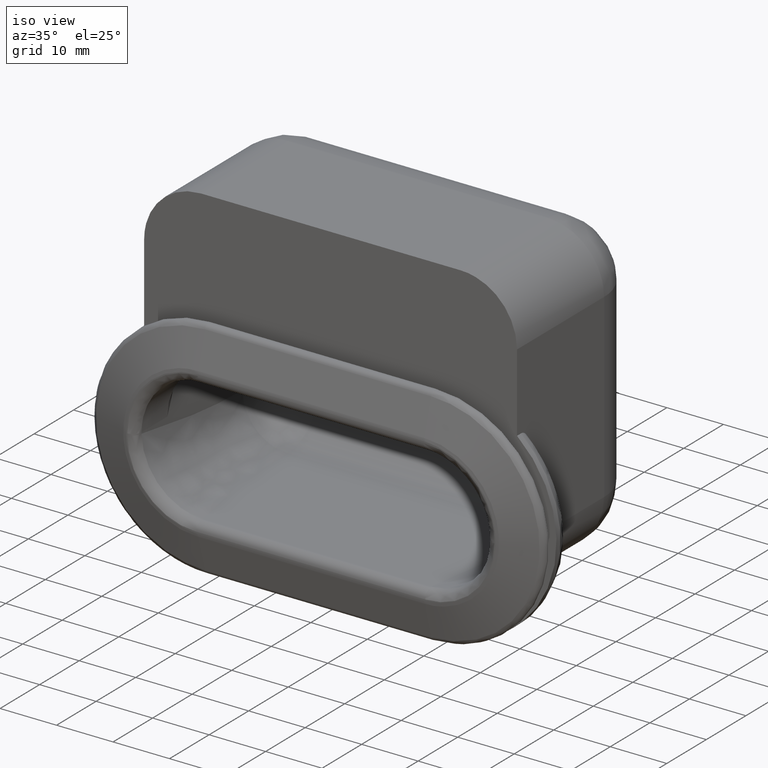
[diagram: clean part render]
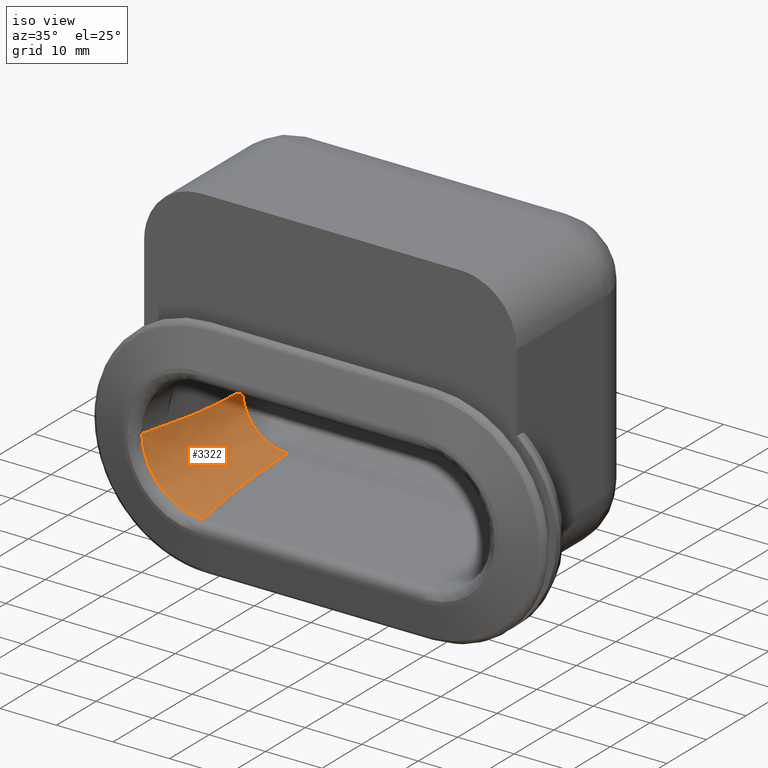
[diagram: same view with one face highlighted and labeled with its STEP entity id]
A machine part, iso view. The second image highlights one B-rep face of the part: STEP entity #3322.
In plain terms, the highlighted face is a freeform B-spline surface patch.
Its self-contained STEP definition (entity closure, byte-faithful):
#1757=CARTESIAN_POINT('',(-20.249742798353850,1.499999999999714,-11.0));
#1758=VERTEX_POINT('',#1757);
#1772=CARTESIAN_POINT('',(-31.0,1.499999999999946,-0.249742798353906));
#1773=VERTEX_POINT('',#1772);
#1774=CARTESIAN_POINT('',(-31.0,1.500000000000000,-0.249742798353914));
#1775=CARTESIAN_POINT('',(-30.999999969727771,1.500252549815685,-0.260678283964079));
#1776=CARTESIAN_POINT('',(-30.999982966152999,1.500511854793803,-0.271923207818009));
#1777=CARTESIAN_POINT('',(-30.999914875682691,1.501022357084521,-0.294095832073633));
#1778=CARTESIAN_POINT('',(-30.999761708183421,1.501786738729247,-0.327346128542702));
#1779=CARTESIAN_POINT('',(-30.999047610634769,1.503560704739157,-0.404869761618341));
#1780=CARTESIAN_POINT('',(-30.996196569838840,1.507070359810214,-0.559676134094665));
#1781=CARTESIAN_POINT('',(-30.984832784577161,1.513937213818059,-0.868330331959268));
#1782=CARTESIAN_POINT('',(-30.965480106046961,1.519563782671905,-1.131263686030261));
#1783=CARTESIAN_POINT('',(-30.914121269234968,1.530474634001934,-1.654988143755380));
#1784=CARTESIAN_POINT('',(-30.863040131099851,1.537292860613451,-2.001286426256269));
#1785=CARTESIAN_POINT('',(-30.727330874605752,1.550019076581776,-2.688203497313830));
#1786=CARTESIAN_POINT('',(-30.642704376874370,1.555927137404509,-3.028822559715315));
#1787=CARTESIAN_POINT('',(-30.515438347136101,1.562729326899967,-3.450959337482828));
#1788=CARTESIAN_POINT('',(-30.488908534491301,1.564060558884691,-3.535204423724529));
#1789=CARTESIAN_POINT('',(-30.433672574357011,1.566664002593560,-3.703326142766757));
#1790=CARTESIAN_POINT('',(-30.404929356673222,1.567937730322128,-3.787305598778076));
#1791=CARTESIAN_POINT('',(-30.315668787811699,1.571658021342872,-4.037920181667801));
#1792=CARTESIAN_POINT('',(-30.252274256269100,1.573998293096441,-4.202843580725103));
#1793=CARTESIAN_POINT('',(-30.050657477253541,1.580607973873049,-4.691281782404476));
#1794=CARTESIAN_POINT('',(-29.751400787633340,1.588326438126842,-5.325677400030978));
#1795=CARTESIAN_POINT('',(-29.392347790066850,1.593899657487367,-5.926956212383218));
#1796=CARTESIAN_POINT('',(-29.100393212354970,1.597268330194704,-6.365362909543805));
#1797=CARTESIAN_POINT('',(-28.999290929815860,1.598255774612405,-6.509402741164915));
#1798=CARTESIAN_POINT('',(-28.841868869957271,1.599530654360605,-6.722267655782300));
#1799=CARTESIAN_POINT('',(-28.788432961602311,1.599921216719429,-6.792689906487038));
#1800=CARTESIAN_POINT('',(-28.679616336645658,1.600632821243189,-6.932457318146385));
#1801=CARTESIAN_POINT('',(-28.624162111747900,1.600954171535396,-7.001889391042955));
#1802=CARTESIAN_POINT('',(-28.343386568833211,1.602378392426294,-7.344617237387416));
#1803=CARTESIAN_POINT('',(-28.106968106284508,1.602940876073137,-7.605510416955004));
#1804=CARTESIAN_POINT('',(-27.611283274364379,1.602949289250014,-8.101561285905730));
#1805=CARTESIAN_POINT('',(-27.352014939656659,1.602395120194672,-8.336716761560417));
#1806=CARTESIAN_POINT('',(-26.810703202545149,1.600173148359806,-8.781374265571824));
#1807=CARTESIAN_POINT('',(-26.528660996648959,1.598505399192582,-8.990877641640068));
#1808=CARTESIAN_POINT('',(-26.161510743074778,1.595705799039095,-9.236314487991463));
#1809=CARTESIAN_POINT('',(-26.087349131402210,1.595110048229710,-9.284577839319576));
#1810=CARTESIAN_POINT('',(-25.937546698580551,1.593846059966300,-9.379438385225800));
#1811=CARTESIAN_POINT('',(-25.861923303328780,1.593177861726546,-9.426019871952594));
#1812=CARTESIAN_POINT('',(-25.634109136732761,1.591075830877801,-9.562483692584458));
#1813=CARTESIAN_POINT('',(-25.480556374427511,1.589541186584991,-9.649356653936765));
#1814=CARTESIAN_POINT('',(-25.014965274155109,1.584544616997456,-9.897904475909265));
#1815=CARTESIAN_POINT('',(-24.381046264508448,1.576837341098695,-10.197169072965620));
#1816=CARTESIAN_POINT('',(-23.721311307264770,1.567070075492736,-10.433259427537481));
#1817=CARTESIAN_POINT('',(-23.216718845343930,1.558962032665884,-10.586366982975131));
#1818=CARTESIAN_POINT('',(-23.046886627025390,1.556128699918070,-10.633402475251550));
#1819=CARTESIAN_POINT('',(-22.703898412440878,1.550196321729555,-10.719339821660601));
#1820=CARTESIAN_POINT('',(-22.530416406083990,1.547090913286038,-10.758292216663390));
#1821=CARTESIAN_POINT('',(-22.009353922082109,1.537451652441176,-10.861848168795451));
#1822=CARTESIAN_POINT('',(-21.660071958501280,1.530578194912349,-10.913521109391930));
#1823=CARTESIAN_POINT('',(-21.133326290213930,1.519607913535420,-10.965327983016991));
#1824=CARTESIAN_POINT('',(-20.957273088455960,1.515840958675693,-10.978305371586270));
#1825=CARTESIAN_POINT('',(-20.692483369990310,1.510025025912975,-10.991307352715740));
#1826=CARTESIAN_POINT('',(-20.559910952298939,1.507075668458496,-10.996191594433990));
#1827=CARTESIAN_POINT('',(-20.404930907235130,1.503562101894457,-10.999046958920101));
#1828=CARTESIAN_POINT('',(-20.327362576468119,1.501787116551272,-10.999761619591171));
#1829=CARTESIAN_POINT('',(-20.294102197164790,1.501022503539905,-10.999914852025460));
#1830=CARTESIAN_POINT('',(-20.271924872273470,1.500511893210607,-10.999982965150620));
#1831=CARTESIAN_POINT('',(-20.260678283964062,1.500252549815685,-10.999999969726170));
#1832=CARTESIAN_POINT('',(-20.249742798353850,1.499999999999714,-11.0));
#1833=B_SPLINE_CURVE_WITH_KNOTS('',3,(#1774,#1775,#1776,#1777,#1778,#1779,#1780,#1781,#1782,#1783,#1784,#1785,#1786,#1787,#1788,#1789,#1790,#1791,#1792,#1793,#1794,#1795,#1796,#1797,#1798,#1799,#1800,#1801,#1802,#1803,#1804,#1805,#1806,#1807,#1808,#1809,#1810,#1811,#1812,#1813,#1814,#1815,#1816,#1817,#1818,#1819,#1820,#1821,#1822,#1823,#1824,#1825,#1826,#1827,#1828,#1829,#1830,#1831,#1832),.UNSPECIFIED.,.F.,.U.,(4,2,1,1,1,1,2,2,2,2,2,2,1,2,2,2,2,2,2,2,2,2,2,1,2,2,2,2,2,1,1,1,2,4),(0.0,0.001953125000000,0.003906250000000,0.007812500000000,0.015625000000000,0.031250000000000,0.062500000000000,0.125000000000000,0.187500000000000,0.203125000000000,0.218750000000000,0.250000000000000,0.312500000000000,0.375000000000000,0.406250000000000,0.421875000000000,0.437500000000000,0.500000000000000,0.562499999999999,0.624999999999999,0.640624999999999,0.656249999999999,0.687499999999999,0.749999999999999,0.812500000000000,0.843750000000000,0.875000000000000,0.937499999999999,0.968750000000000,0.984375000000000,0.992187500000000,0.996093750000000,0.998046875000000,1.0),.UNSPECIFIED.);
#1834=EDGE_CURVE('',#1773,#1758,#1833,.T.);
#3260=CARTESIAN_POINT('',(-22.943588335998800,27.127499997150135,-10.999999999999991));
#3261=CARTESIAN_POINT('',(-22.971752915822968,27.127499997150164,-11.0));
#3262=CARTESIAN_POINT('',(-30.999999999999947,27.127499997150156,-10.999999999999988));
#3263=CARTESIAN_POINT('',(-30.999999999999993,27.127499997150146,-2.971752917189175));
#3264=CARTESIAN_POINT('',(-30.999999999999979,27.127499997150142,-2.943588338723264));
#3265=CARTESIAN_POINT('',(-22.957140973232956,18.533999998099905,-10.999999999999991));
#3266=CARTESIAN_POINT('',(-22.985258173254032,18.533999998099915,-11.0));
#3267=CARTESIAN_POINT('',(-30.999999999999957,18.533999998099905,-10.999999999999989));
#3268=CARTESIAN_POINT('',(-30.999999999999993,18.533999998099901,-2.985258174617943));
#3269=CARTESIAN_POINT('',(-30.999999999999979,18.533999998099905,-2.957140975952841));
#3270=CARTESIAN_POINT('',(-21.587089035910605,9.940499999049660,-10.999999999999991));
#3271=CARTESIAN_POINT('',(-21.619995830314437,9.940499999049665,-11.0));
#3272=CARTESIAN_POINT('',(-30.999999999999957,9.940499999049678,-10.999999999999989));
#3273=CARTESIAN_POINT('',(-30.999999999999993,9.940499999049662,-1.619995831910682));
#3274=CARTESIAN_POINT('',(-30.999999999999979,9.940499999049658,-1.587089039093801));
#3275=CARTESIAN_POINT('',(-20.148329448189951,1.346999999999419,-10.999999999999991));
#3276=CARTESIAN_POINT('',(-20.186266032643253,1.346999999999420,-11.0));
#3277=CARTESIAN_POINT('',(-30.999999999999947,1.346999999999425,-10.999999999999988));
#3278=CARTESIAN_POINT('',(-30.999999999999993,1.346999999999421,-0.186266034483485));
#3279=CARTESIAN_POINT('',(-30.999999999999979,1.346999999999421,-0.148329451859694));
#3287=(BOUNDED_SURFACE()B_SPLINE_SURFACE(2,3,((#3260,#3265,#3270,#3275),(#3261,#3266,#3271,#3276),(#3262,#3267,#3272,#3277),(#3263,#3268,#3273,#3278),(#3264,#3269,#3274,#3279)),.UNSPECIFIED.,.F.,.F.,.U.)B_SPLINE_SURFACE_WITH_KNOTS((3,1,1,3),(4,4),(0.0,0.089281919174790,17.943023478283010,18.032305393133210),(0.0,26.139327505970989),.UNSPECIFIED.)GEOMETRIC_REPRESENTATION_ITEM()RATIONAL_B_SPLINE_SURFACE(((1.002929365657319,1.002929365657319,1.002929365657319,1.002929365657319),(1.001464682828659,1.001464682828659,1.001464682828659,1.001464682828659),(0.707106781186548,0.707106781186548,0.707106781186548,0.707106781186548),(1.001464682757714,1.001464682757714,1.001464682757714,1.001464682757714),(1.002929365515428,1.002929365515428,1.002929365515428,1.002929365515428)))REPRESENTATION_ITEM('')SURFACE());
#3288=CARTESIAN_POINT('',(-31.0,27.0,-3.0));
#3289=VERTEX_POINT('',#3288);
#3290=CARTESIAN_POINT('',(-31.0,1.499999999999946,-0.249742798353906));
#3291=CARTESIAN_POINT('',(-31.0,9.999999999999769,-1.662037037037001));
#3292=CARTESIAN_POINT('',(-31.0,18.499999999999879,-3.0));
#3293=CARTESIAN_POINT('',(-31.0,27.0,-3.0));
#3294=B_SPLINE_CURVE_WITH_KNOTS('',3,(#3290,#3291,#3292,#3293),.UNSPECIFIED.,.F.,.U.,(4,4),(0.0,0.314814814814819),.UNSPECIFIED.);
#3295=EDGE_CURVE('',#1773,#3289,#3294,.T.);
#3296=ORIENTED_EDGE('',*,*,#3295,.F.);
#3297=ORIENTED_EDGE('',*,*,#1834,.T.);
#3298=CARTESIAN_POINT('',(-23.0,27.0,-11.0));
#3299=VERTEX_POINT('',#3298);
#3300=CARTESIAN_POINT('',(-23.0,27.0,-11.0));
#3301=CARTESIAN_POINT('',(-23.0,18.499999999999812,-11.0));
#3302=CARTESIAN_POINT('',(-21.662037037036971,9.999999999999615,-11.0));
#3303=CARTESIAN_POINT('',(-20.249742798353850,1.499999999999714,-11.0));
#3304=B_SPLINE_CURVE_WITH_KNOTS('',3,(#3300,#3301,#3302,#3303),.UNSPECIFIED.,.F.,.U.,(4,4),(0.0,0.314814814814822),.UNSPECIFIED.);
#3305=EDGE_CURVE('',#3299,#1758,#3304,.T.);
#3306=ORIENTED_EDGE('',*,*,#3305,.F.);
#3307=CARTESIAN_POINT('',(-23.0,27.0,-11.0));
#3308=CARTESIAN_POINT('',(-31.000000000000007,27.000000000000011,-11.0));
#3309=CARTESIAN_POINT('',(-31.0,27.0,-3.0));
#3317=(BOUNDED_CURVE()B_SPLINE_CURVE(2,(#3307,#3308,#3309),.UNSPECIFIED.,.F.,.U.)CURVE()GEOMETRIC_REPRESENTATION_ITEM()QUASI_UNIFORM_CURVE()RATIONAL_B_SPLINE_CURVE((1.0,0.707106781186548,1.0))REPRESENTATION_ITEM(''));
#3318=EDGE_CURVE('',#3299,#3289,#3317,.T.);
#3319=ORIENTED_EDGE('',*,*,#3318,.T.);
#3320=EDGE_LOOP('',(#3296,#3297,#3306,#3319));
#3321=FACE_OUTER_BOUND('',#3320,.T.);
#3322=ADVANCED_FACE('',(#3321),#3287,.T.);